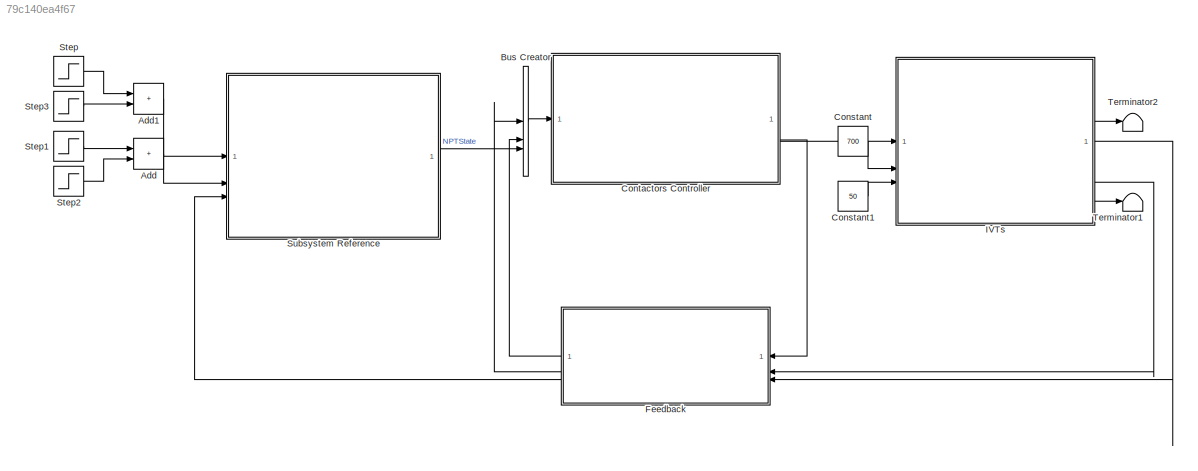
MODEL slx_79c140ea4f67
KIND model
CONFIG AbsTol = auto
CONFIG EnableMultiTasking = off
CONFIG FixedStep = tSimCont
CONFIG MaxStep = auto
CONFIG MinStep = auto
CONFIG RelTol = 1e-3
CONFIG SampleTimeConstraint = Unconstrained
CONFIG SolverName = FixedStepDiscrete
CONFIG StartTime = 0.0
CONFIG StopTime = 15
BLOCK [Sum] Add
  IconShape = rectangular
BLOCK [Sum] Add1
  IconShape = rectangular
BLOCK [BusCreator] Bus Creator
  DisplayOption = bar
  InheritFromInputs = off
  Inputs = 3
  OutDataTypeStr = Bus: ContactorsInputs_BUS
BLOCK [Constant] Constant
  SampleTime = tSimCont
  Value = 700
BLOCK [Constant] Constant1
  SampleTime = tSimCont
  Value = 50
BLOCK [SubSystem] Contactors Controller
  PermitHierarchicalResolution = None
  ReferencedSubsystem = ContactorsController
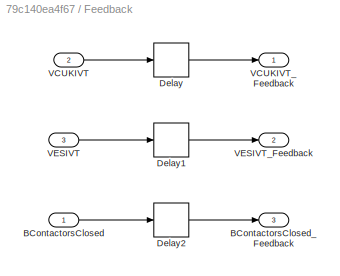
BLOCK [SubSystem] Feedback
BLOCK [Inport] Feedback/BContactorsClosed
BLOCK [Outport] Feedback/BContactorsClosed_Feedback
  Port = 3
BLOCK [Delay] Feedback/Delay
  DelayLength = 1
  InputPortMap = u0
BLOCK [Delay] Feedback/Delay1
  DelayLength = 1
  InputPortMap = u0
BLOCK [Delay] Feedback/Delay2
  DelayLength = 1
  InputPortMap = u0
BLOCK [Inport] Feedback/VCUKIVT
  Port = 2
BLOCK [Outport] Feedback/VCUKIVT_Feedback
BLOCK [Inport] Feedback/VESIVT
  Port = 3
BLOCK [Outport] Feedback/VESIVT_Feedback
  Port = 2
BLOCK [SubSystem] IVTs
  PermitHierarchicalResolution = None
  ReferencedSubsystem = IVTs
BLOCK [Step] Step
  SampleTime = tSimCont
BLOCK [Step] Step1
  SampleTime = tSimCont
  Time = 4
BLOCK [Step] Step2
  After = -1
  SampleTime = tSimCont
  Time = 7
BLOCK [Step] Step3
  After = -1
  SampleTime = tSimCont
  Time = 10
BLOCK [SubSystem] Subsystem Reference
  PermitHierarchicalResolution = None
  ReferencedSubsystem = PowertrainState
BLOCK [Terminator] Terminator1
BLOCK [Terminator] Terminator2
LINE Add1:1 -> Subsystem Reference:1
LINE Add:1 -> Subsystem Reference:2
LINE Bus Creator:1 -> Contactors Controller:1
LINE Constant1:1 -> IVTs:3
LINE Constant:1 -> IVTs:2
LINE Contactors Controller:1 -> IVTs:1
LINE Contactors Controller:2 -> Feedback:1
LINE Feedback/BContactorsClosed:1 -> Feedback/Delay2:1
LINE Feedback/Delay1:1 -> Feedback/VESIVT_Feedback:1
LINE Feedback/Delay2:1 -> Feedback/BContactorsClosed_Feedback:1
LINE Feedback/Delay:1 -> Feedback/VCUKIVT_Feedback:1
LINE Feedback/VCUKIVT:1 -> Feedback/Delay:1
LINE Feedback/VESIVT:1 -> Feedback/Delay1:1
LINE Feedback:1 -> Bus Creator:2
LINE Feedback:2 -> Bus Creator:1
LINE Feedback:3 -> Subsystem Reference:3
LINE IVTs:1 -> Feedback:3
LINE IVTs:2 -> Terminator2:1
LINE IVTs:3 -> Feedback:2
LINE IVTs:4 -> Terminator1:1
LINE Step1:1 -> Add:1
LINE Step2:1 -> Add:2
LINE Step3:1 -> Add1:2
LINE Step:1 -> Add1:1
LINE Subsystem Reference:1 -> Bus Creator:3
